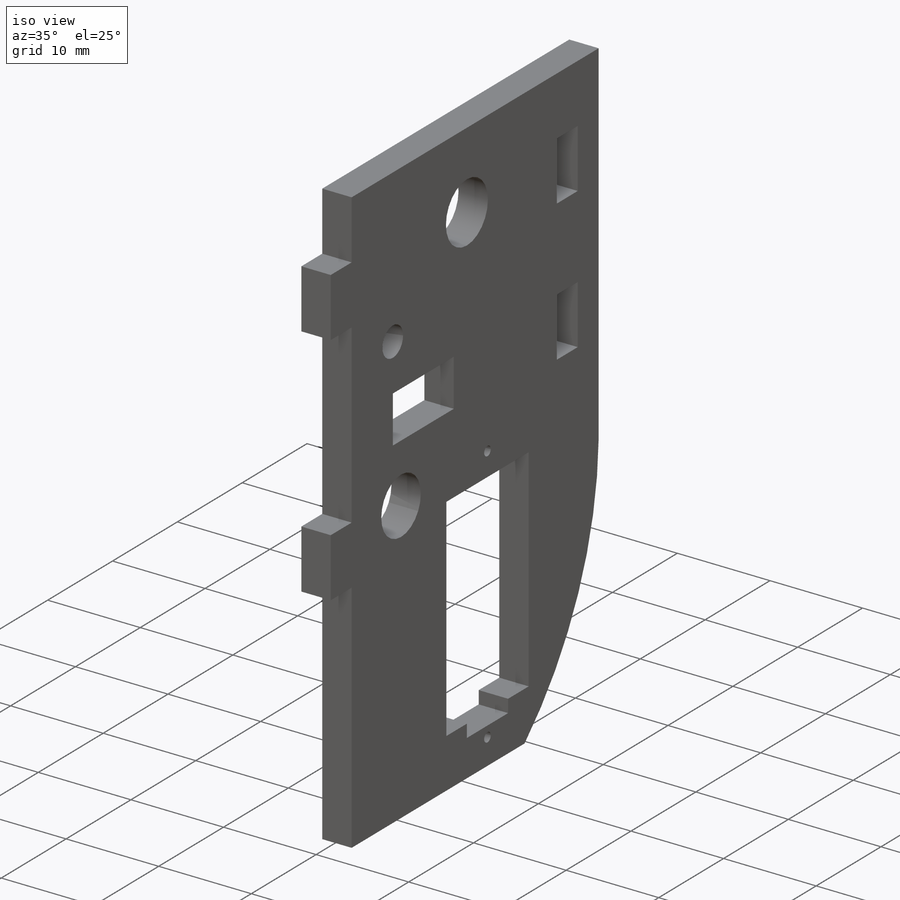
[diagram: iso view]
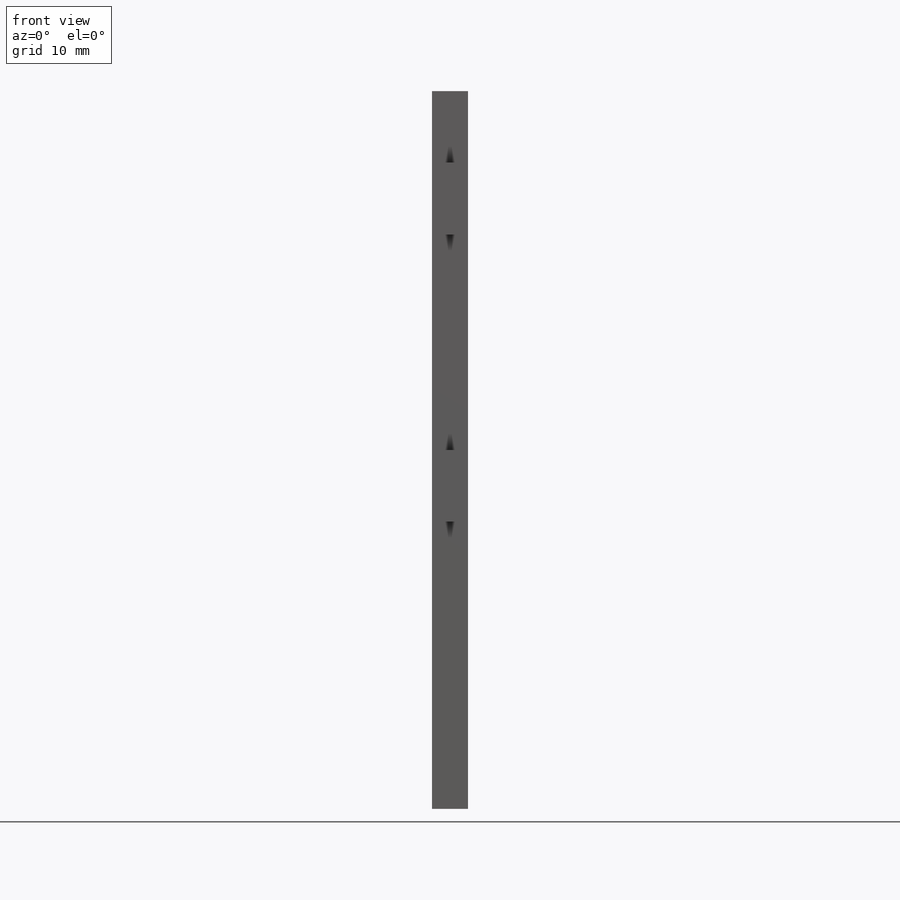
[diagram: front view]
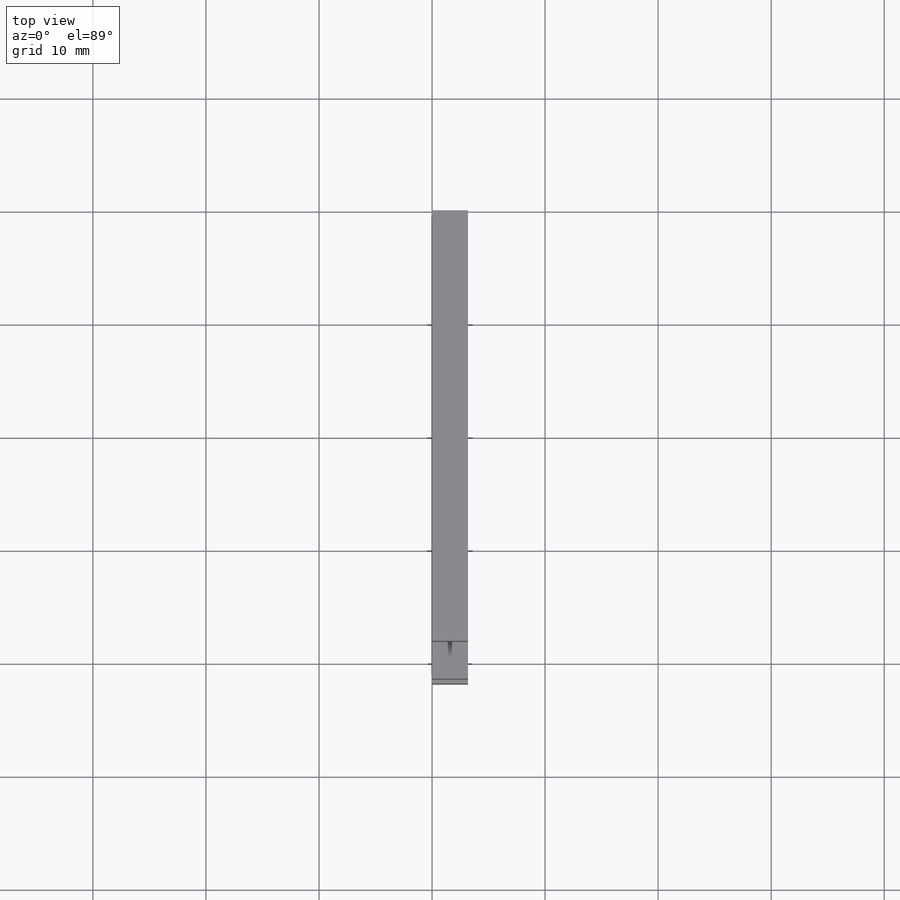
[diagram: top view]
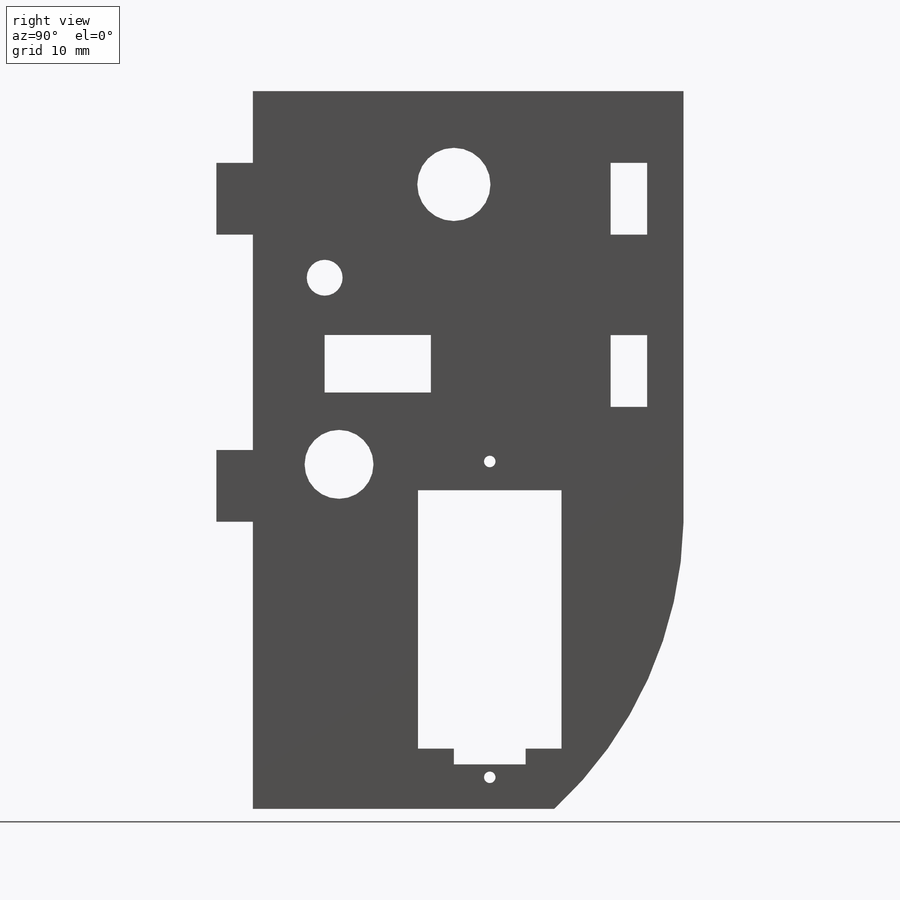
[diagram: right view]
SOLIDWORKS PART (.sldprt)
format: sldprt  version: not decoded by parser v0  size: 441,856 bytes
history: native  units: mm
features: sketch x9, cut_extrude x7, extrude x2, material x1 (+16 scaffold rows collapsed)
feature tree (35):
  scaffold x16  (default folders/planes/origin — collapsed)
  material  "Material <not specified>"
  sketch  "Sketch1"  dims[D1=63.5mm D2=38.1mm]
  extrude  "main body"  Depth=3.175mm
  sketch  "Sketch2"  dims[c1.D1=3.2258mm c1.D2=6.35mm c1.D3=6.35mm c1.D4=3.2258mm c1.D5=5.08mm c1.D6=19.05mm c1.D7=17.78mm c1.D8=3.2258mm c1.D9=6.35mm c2.D5=17.78mm c2.D7=3.2258mm c2.D8=10.16mm c2.D9=6.35mm c3.D5=6.35mm c3.D10=3.2258mm c3.D11=6.35mm c3.D12=6.35mm]
  extrude  "tabs"  Depth=3.175mm
  sketch  "Sketch5"  dims[c1.D5=1.016mm c1.D6=1.016mm c1.D9=2.032mm c1.D1=27.94mm c1.D2=6.35mm c1.D3=22.86mm c1.D4=12.7mm c1.D7=1.397mm c1.D8=6.35mm c2.D9=8.636mm c2.D4=~1.901578mm c2.D1=31.75mm c3.D1=55.0deg c3.D2=9.271mm c3.D3=27.94mm c3.D4=15.24mm c3.D5=14.478mm c3.D6=6.35mm c3.D7=22.86mm c3.D8=12.7mm c3.D9=42.672mm c4.D5=29.972mm c4.D1=29.972mm c4.D2=15.24mm c5.D1=11.43mm c5.D2=20.955mm]
  cut_extrude  "motor cut"  [1 undecoded]
  sketch  "Sketch6"  dims[D3=6.477mm D1=17.78mm D2=8.255mm]
  cut_extrude  "cut for axle"  [1 undecoded]
  sketch  "Sketch7"  dims[c1.D1=~11.74957mm c1.D2=11.43mm c1.D3=~36.807173mm c2.D1=25.4mm c2.D2=21.59mm c2.D3=31.75mm c3.D2=11.43mm]
  cut_extrude  "round off back corner"  [1 undecoded]
  sketch  "Sketch8"  dims[D1=8.89mm D2=6.35mm D3=3.2258mm D4=6.35mm D5=6.35mm D6=3.2258mm D7=3.2258mm]
  cut_extrude  "cut for tabs"  [1 undecoded]
  sketch  "Sketch9"  dims[D1=3.175mm D2=6.35mm D3=16.51mm]
  cut_extrude  "cut for bracket screw"  [1 undecoded]
  sketch  "Sketch10"  dims[D3=6.096mm D1=30.48mm D2=7.62mm]
  cut_extrude  "cut for basic 2nd mount axle"  [1 undecoded]
  sketch  "Sketch11"  dims[c1.D1=9.398mm c1.D2=5.08mm c1.D3=16.51mm c1.D4=8.89mm c2.D3=6.35mm]
  cut_extrude  "Cut-Extrude1"  [1 undecoded]
decode coverage: 11 of 18 modeling features carry decoded parameters
note: ~ marks probable driven/reference dimensions
note: 7 parameter values undecoded
summary: no parameter record found for 7 features
note: suppression state not decoded; provenance and decode notes live in map.json
